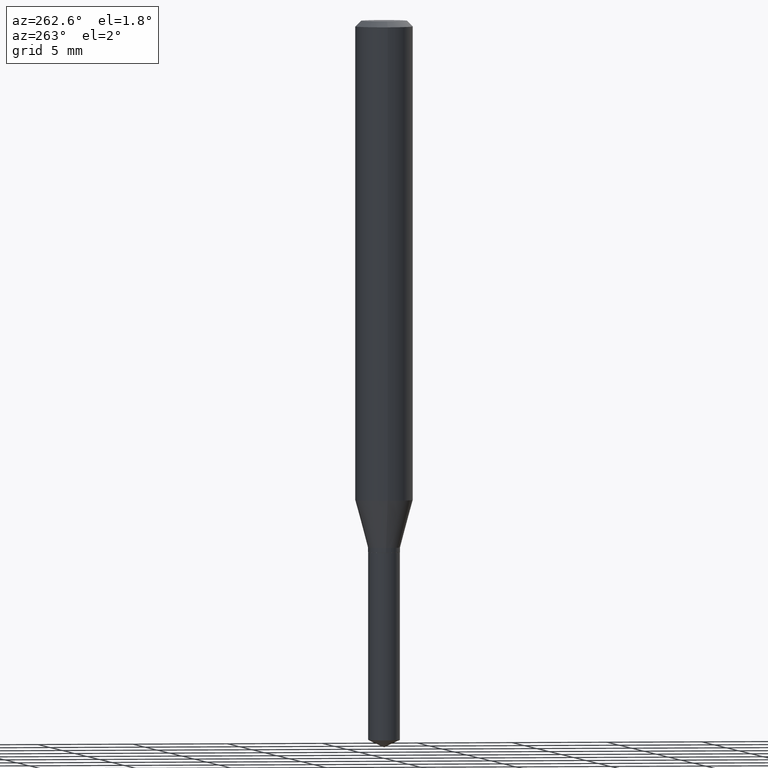
[diagram: clean part render]
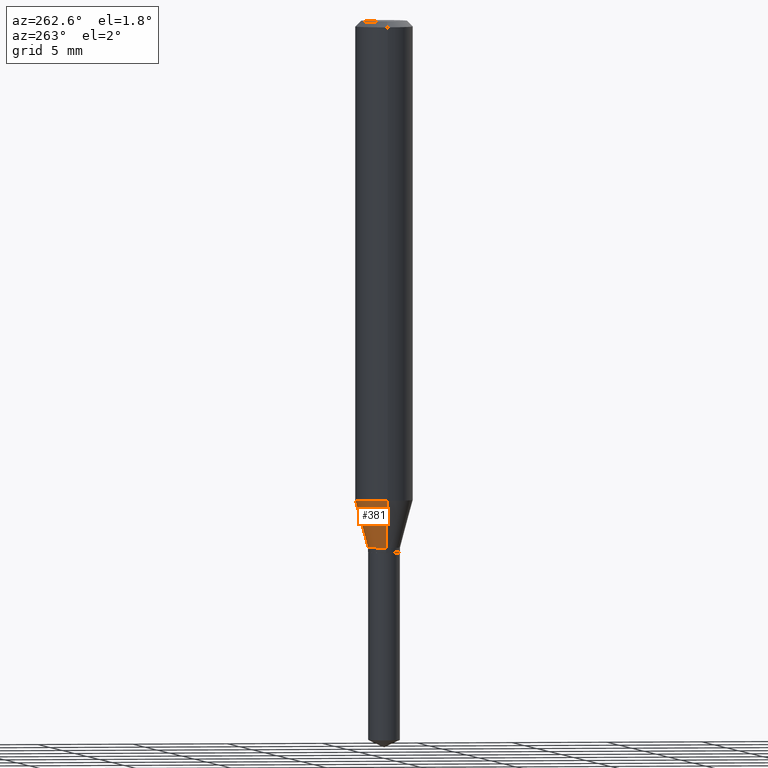
[diagram: same view with one face highlighted and labeled with its STEP entity id]
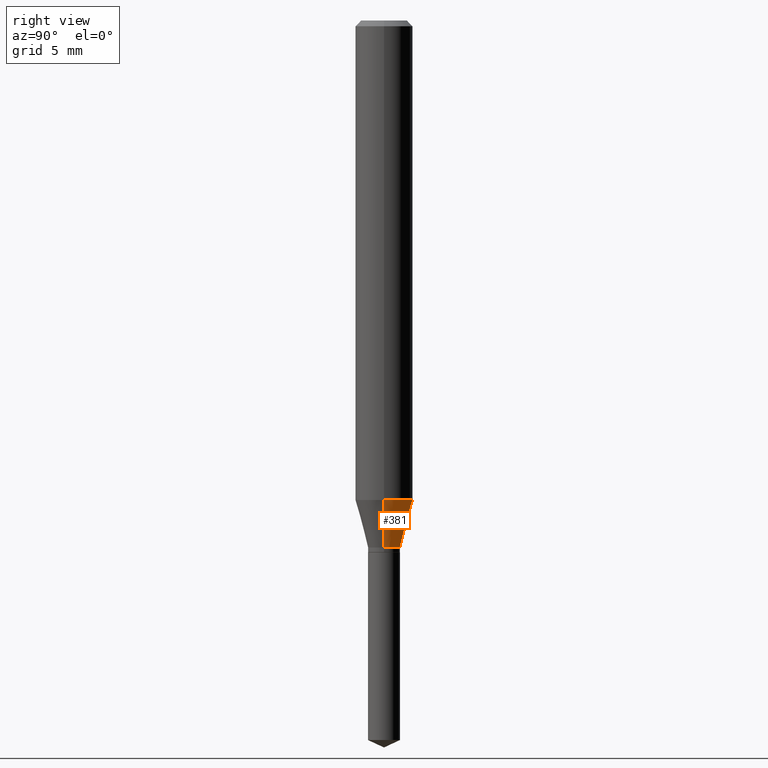
[diagram: same view with one face highlighted and labeled with its STEP entity id]
A machine part, auxiliary view. The second image highlights one B-rep face of the part: STEP entity #381.
A second angle (right view) of the same face is appended — the face is thin or edge-on in the first view.
In plain terms, the highlighted conical surface has half-angle 15 deg.
Its self-contained STEP definition (entity closure, byte-faithful):
#11 = CARTESIAN_POINT ( 'NONE',  ( 2.652355467188399034E-29, -3.786860660109275425E-15, -1.084600000000000009 ) ) ;
#61 = EDGE_LOOP ( 'NONE', ( #334, #142, #404, #453 ) ) ;
#71 = DIRECTION ( 'NONE',  ( -0.2588190451025211836, 5.211531920934547886E-15, 0.9659258262890679791 ) ) ;
#88 = DIRECTION ( 'NONE',  ( 1.000000000000000000, -6.982962677686273021E-15, 0.000000000000000000 ) ) ;
#102 = VERTEX_POINT ( 'NONE', #121 ) ;
#121 = CARTESIAN_POINT ( 'NONE',  ( -0.03284999999999999726, -3.569857333704645111E-15, -1.084600000000000009 ) ) ;
#122 = CARTESIAN_POINT ( 'NONE',  ( 2.413238184763595651E-29, -3.445464553452954771E-15, -0.9868202688416950474 ) ) ;
#132 = VECTOR ( 'NONE', #71, 39.37007874015748854 ) ;
#142 = ORIENTED_EDGE ( 'NONE', *, *, #226, .T. ) ;
#145 = CIRCLE ( 'NONE', #464, 0.05905000000000011628 ) ;
#149 = EDGE_CURVE ( 'NONE', #294, #102, #440, .T. ) ;
#154 = DIRECTION ( 'NONE',  ( 1.000000000000000000, -6.982962677686273021E-15, 0.000000000000000000 ) ) ;
#155 = FACE_OUTER_BOUND ( 'NONE', #61, .T. ) ;
#157 = EDGE_CURVE ( 'NONE', #294, #205, #275, .T. ) ;
#181 = AXIS2_PLACEMENT_3D ( 'NONE', #11, #230, #154 ) ;
#205 = VERTEX_POINT ( 'NONE', #389 ) ;
#226 = EDGE_CURVE ( 'NONE', #102, #258, #466, .T. ) ;
#230 = DIRECTION ( 'NONE',  ( -2.445468806185136597E-29, 3.491481338843145583E-15, 1.000000000000000000 ) ) ;
#235 = CARTESIAN_POINT ( 'NONE',  ( 2.652355467188399034E-29, -3.786860660109275425E-15, -1.084600000000000009 ) ) ;
#258 = VERTEX_POINT ( 'NONE', #259 ) ;
#259 = CARTESIAN_POINT ( 'NONE',  ( -0.05905000000000011628, -3.025889067986614883E-15, -0.9868202688416950474 ) ) ;
#275 = LINE ( 'NONE', #386, #288 ) ;
#276 = DIRECTION ( 'NONE',  ( -2.445468806185136597E-29, 3.491481338843145583E-15, 1.000000000000000000 ) ) ;
#288 = VECTOR ( 'NONE', #429, 39.37007874015748854 ) ;
#294 = VERTEX_POINT ( 'NONE', #412 ) ;
#334 = ORIENTED_EDGE ( 'NONE', *, *, #149, .T. ) ;
#336 = EDGE_CURVE ( 'NONE', #205, #258, #145, .T. ) ;
#353 = DIRECTION ( 'NONE',  ( -2.445468806185136597E-29, 3.491481338843145583E-15, 1.000000000000000000 ) ) ;
#381 = ADVANCED_FACE ( 'NONE', ( #155 ), #423, .T. ) ;
#386 = CARTESIAN_POINT ( 'NONE',  ( 0.03284999999999999726, -4.016250984071269671E-15, -1.084600000000000009 ) ) ;
#387 = CARTESIAN_POINT ( 'NONE',  ( -0.03284999999999999726, -3.553447371412082977E-15, -1.084600000000000009 ) ) ;
#389 = CARTESIAN_POINT ( 'NONE',  ( 0.05905000000000011628, -3.857808499570329297E-15, -0.9868202688416950474 ) ) ;
#404 = ORIENTED_EDGE ( 'NONE', *, *, #336, .F. ) ;
#412 = CARTESIAN_POINT ( 'NONE',  ( 0.03284999999999999726, -4.016250984071269671E-15, -1.084600000000000009 ) ) ;
#423 = CONICAL_SURFACE ( 'NONE', #431, 0.03284999999999999726, 0.2617993877991499074 ) ;
#427 = DIRECTION ( 'NONE',  ( 1.000000000000000000, -6.982962677686266711E-15, 0.000000000000000000 ) ) ;
#429 = DIRECTION ( 'NONE',  ( 0.2588190451025211836, 1.565188264969622559E-15, 0.9659258262890679791 ) ) ;
#431 = AXIS2_PLACEMENT_3D ( 'NONE', #235, #276, #88 ) ;
#440 = CIRCLE ( 'NONE', #181, 0.03284999999999999726 ) ;
#453 = ORIENTED_EDGE ( 'NONE', *, *, #157, .F. ) ;
#464 = AXIS2_PLACEMENT_3D ( 'NONE', #122, #353, #427 ) ;
#466 = LINE ( 'NONE', #387, #132 ) ;